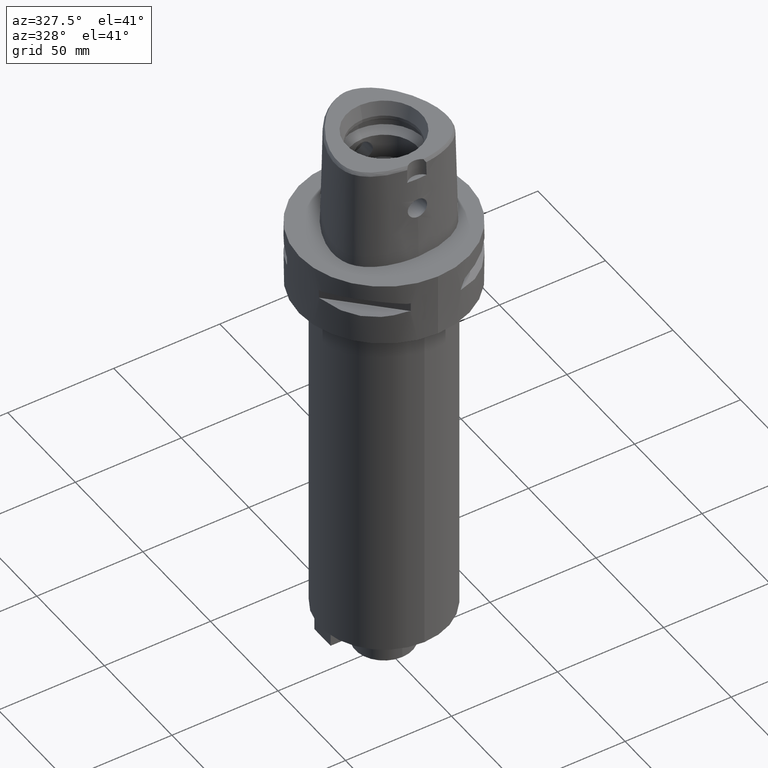
[diagram: clean part render]
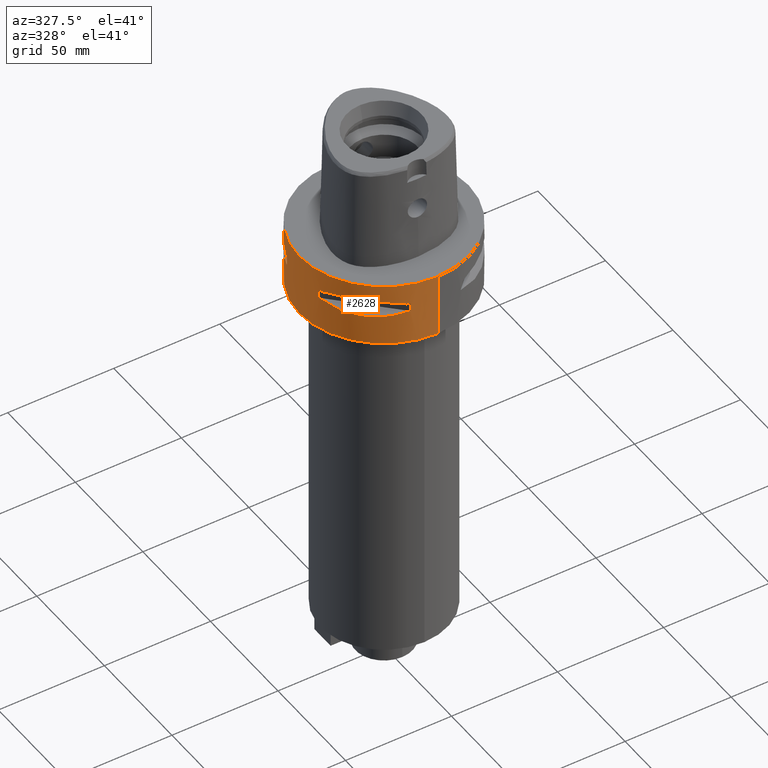
[diagram: same view with one face highlighted and labeled with its STEP entity id]
A machine part, auxiliary view. The second image highlights one B-rep face of the part: STEP entity #2628.
In plain terms, the highlighted cylindrical surface (partial cylindrical patch) has radius 40 mm, axis along (0, 0, -1).
Its self-contained STEP definition (entity closure, byte-faithful):
#267=CARTESIAN_POINT('',(0.E0,1.359357947054E-14,0.E0));
#268=DIRECTION('',(0.E0,0.E0,-1.E0));
#269=DIRECTION('',(0.E0,-1.E0,0.E0));
#270=AXIS2_PLACEMENT_3D('',#267,#268,#269);
#363=DIRECTION('',(0.E0,0.E0,-1.E0));
#364=VECTOR('',#363,3.E1);
#365=CARTESIAN_POINT('',(0.E0,-4.E1,0.E0));
#366=LINE('',#365,#364);
#370=DIRECTION('',(0.E0,0.E0,-1.E0));
#371=VECTOR('',#370,4.1E0);
#372=CARTESIAN_POINT('',(-1.176033600281E1,3.823211342708E1,-9.95E0));
#373=LINE('',#372,#371);
#377=CARTESIAN_POINT('',(-1.323717311056E1,3.774622163927E1,-1.405E1));
#378=CARTESIAN_POINT('',(-1.626143876435E1,3.668564587161E1,-1.485167303901E1));
#379=CARTESIAN_POINT('',(-2.171906657626E1,3.397359084062E1,-1.597254843317E1));
#380=CARTESIAN_POINT('',(-2.850324251697E1,2.850324251697E1,-1.650891631180E1));
#381=CARTESIAN_POINT('',(-3.397359084062E1,2.171906657626E1,-1.597254843317E1));
#382=CARTESIAN_POINT('',(-3.668564587161E1,1.626143876435E1,-1.485167303901E1));
#383=CARTESIAN_POINT('',(-3.774622163927E1,1.323717311056E1,-1.405E1));
#388=DIRECTION('',(0.E0,0.E0,1.E0));
#389=VECTOR('',#388,4.1E0);
#390=CARTESIAN_POINT('',(-3.823211342708E1,1.176033600281E1,-1.405E1));
#391=LINE('',#390,#389);
#395=DIRECTION('',(0.E0,0.E0,-1.E0));
#396=VECTOR('',#395,4.1E0);
#397=CARTESIAN_POINT('',(-3.823211342708E1,-1.176033600281E1,-9.95E0));
#398=LINE('',#397,#396);
#402=CARTESIAN_POINT('',(-3.774622163927E1,-1.323717311056E1,-1.405E1));
#403=CARTESIAN_POINT('',(-3.668564587161E1,-1.626143876435E1,
-1.485167303901E1));
#404=CARTESIAN_POINT('',(-3.397359084062E1,-2.171906657626E1,
-1.597254843317E1));
#405=CARTESIAN_POINT('',(-2.850324251697E1,-2.850324251697E1,
-1.650891631180E1));
#406=CARTESIAN_POINT('',(-2.171906657626E1,-3.397359084062E1,
-1.597254843317E1));
#407=CARTESIAN_POINT('',(-1.626143876435E1,-3.668564587161E1,
-1.485167303901E1));
#408=CARTESIAN_POINT('',(-1.323717311056E1,-3.774622163927E1,-1.405E1));
#413=DIRECTION('',(0.E0,0.E0,1.E0));
#414=VECTOR('',#413,4.1E0);
#415=CARTESIAN_POINT('',(-1.176033600281E1,-3.823211342708E1,-1.405E1));
#416=LINE('',#415,#414);
#420=DIRECTION('',(0.E0,0.E0,-1.E0));
#421=VECTOR('',#420,3.E1);
#422=CARTESIAN_POINT('',(0.E0,4.E1,0.E0));
#423=LINE('',#422,#421);
#485=CARTESIAN_POINT('',(0.E0,1.359357947054E-14,-3.E1));
#486=DIRECTION('',(0.E0,0.E0,1.E0));
#487=DIRECTION('',(0.E0,1.E0,0.E0));
#488=AXIS2_PLACEMENT_3D('',#485,#486,#487);
#1484=CARTESIAN_POINT('',(-1.323717311056E1,3.774622163927E1,
-9.950000000002E0));
#1485=CARTESIAN_POINT('',(-1.626143876435E1,3.668564587161E1,
-9.148326960991E0));
#1486=CARTESIAN_POINT('',(-2.171906657626E1,3.397359084062E1,
-8.027451566833E0));
#1487=CARTESIAN_POINT('',(-2.850324251697E1,2.850324251697E1,
-7.491083688204E0));
#1488=CARTESIAN_POINT('',(-3.397359084062E1,2.171906657626E1,
-8.027451566833E0));
#1489=CARTESIAN_POINT('',(-3.668564587161E1,1.626143876435E1,
-9.148326960991E0));
#1490=CARTESIAN_POINT('',(-3.774622163927E1,1.323717311056E1,
-9.950000000002E0));
#1495=CARTESIAN_POINT('',(0.E0,1.359357947054E-14,-9.95E0));
#1496=DIRECTION('',(0.E0,0.E0,1.E0));
#1497=DIRECTION('',(-9.436555409818E-1,3.309293277639E-1,0.E0));
#1498=AXIS2_PLACEMENT_3D('',#1495,#1496,#1497);
#1503=CARTESIAN_POINT('',(0.E0,1.359357947054E-14,-9.95E0));
#1504=DIRECTION('',(0.E0,0.E0,1.E0));
#1505=DIRECTION('',(-2.940084000703E-1,9.558028356770E-1,0.E0));
#1506=AXIS2_PLACEMENT_3D('',#1503,#1504,#1505);
#1525=CARTESIAN_POINT('',(0.E0,1.359357947054E-14,-1.405E1));
#1526=DIRECTION('',(0.E0,0.E0,-1.E0));
#1527=DIRECTION('',(-9.558028356770E-1,2.940084000703E-1,0.E0));
#1528=AXIS2_PLACEMENT_3D('',#1525,#1526,#1527);
#1533=CARTESIAN_POINT('',(0.E0,1.359357947054E-14,-1.405E1));
#1534=DIRECTION('',(0.E0,0.E0,-1.E0));
#1535=DIRECTION('',(-3.309293277639E-1,9.436555409818E-1,0.E0));
#1536=AXIS2_PLACEMENT_3D('',#1533,#1534,#1535);
#1555=CARTESIAN_POINT('',(-3.774622163927E1,-1.323717311056E1,
-9.950000000002E0));
#1556=CARTESIAN_POINT('',(-3.668564587161E1,-1.626143876435E1,
-9.148326960991E0));
#1557=CARTESIAN_POINT('',(-3.397359084062E1,-2.171906657626E1,
-8.027451566833E0));
#1558=CARTESIAN_POINT('',(-2.850324251697E1,-2.850324251697E1,
-7.491083688204E0));
#1559=CARTESIAN_POINT('',(-2.171906657626E1,-3.397359084062E1,
-8.027451566833E0));
#1560=CARTESIAN_POINT('',(-1.626143876435E1,-3.668564587161E1,
-9.148326960991E0));
#1561=CARTESIAN_POINT('',(-1.323717311056E1,-3.774622163927E1,
-9.950000000002E0));
#1566=CARTESIAN_POINT('',(0.E0,1.359357947054E-14,-9.95E0));
#1567=DIRECTION('',(0.E0,0.E0,1.E0));
#1568=DIRECTION('',(-3.309293277639E-1,-9.436555409818E-1,0.E0));
#1569=AXIS2_PLACEMENT_3D('',#1566,#1567,#1568);
#1574=CARTESIAN_POINT('',(0.E0,1.359357947054E-14,-9.95E0));
#1575=DIRECTION('',(0.E0,0.E0,1.E0));
#1576=DIRECTION('',(-9.558028356770E-1,-2.940084000703E-1,0.E0));
#1577=AXIS2_PLACEMENT_3D('',#1574,#1575,#1576);
#1596=CARTESIAN_POINT('',(0.E0,1.359357947054E-14,-1.405E1));
#1597=DIRECTION('',(0.E0,0.E0,-1.E0));
#1598=DIRECTION('',(-2.940084000703E-1,-9.558028356770E-1,0.E0));
#1599=AXIS2_PLACEMENT_3D('',#1596,#1597,#1598);
#1604=CARTESIAN_POINT('',(0.E0,1.359357947054E-14,-1.405E1));
#1605=DIRECTION('',(0.E0,0.E0,-1.E0));
#1606=DIRECTION('',(-9.436555409818E-1,-3.309293277639E-1,0.E0));
#1607=AXIS2_PLACEMENT_3D('',#1604,#1605,#1606);
#1648=CARTESIAN_POINT('',(0.E0,-4.E1,0.E0));
#1649=CARTESIAN_POINT('',(0.E0,4.E1,0.E0));
#1650=VERTEX_POINT('',#1648);
#1651=VERTEX_POINT('',#1649);
#1652=CARTESIAN_POINT('',(0.E0,4.E1,-3.E1));
#1653=VERTEX_POINT('',#1652);
#1654=CARTESIAN_POINT('',(0.E0,-4.E1,-3.E1));
#1655=VERTEX_POINT('',#1654);
#1656=VERTEX_POINT('',#1484);
#1657=VERTEX_POINT('',#1490);
#1658=CARTESIAN_POINT('',(-1.176033600281E1,3.823211342708E1,-9.95E0));
#1659=VERTEX_POINT('',#1658);
#1660=CARTESIAN_POINT('',(-1.176033600281E1,3.823211342708E1,-1.405E1));
#1661=VERTEX_POINT('',#1660);
#1662=CARTESIAN_POINT('',(-1.323717311056E1,3.774622163927E1,-1.405E1));
#1663=VERTEX_POINT('',#1662);
#1664=VERTEX_POINT('',#383);
#1665=CARTESIAN_POINT('',(-3.823211342708E1,1.176033600281E1,-1.405E1));
#1666=VERTEX_POINT('',#1665);
#1667=CARTESIAN_POINT('',(-3.823211342708E1,1.176033600281E1,-9.95E0));
#1668=VERTEX_POINT('',#1667);
#1669=VERTEX_POINT('',#1555);
#1670=VERTEX_POINT('',#1561);
#1671=CARTESIAN_POINT('',(-3.823211342708E1,-1.176033600281E1,-9.95E0));
#1672=VERTEX_POINT('',#1671);
#1673=CARTESIAN_POINT('',(-3.823211342708E1,-1.176033600281E1,-1.405E1));
#1674=VERTEX_POINT('',#1673);
#1675=CARTESIAN_POINT('',(-3.774622163927E1,-1.323717311056E1,-1.405E1));
#1676=VERTEX_POINT('',#1675);
#1677=VERTEX_POINT('',#408);
#1678=CARTESIAN_POINT('',(-1.176033600281E1,-3.823211342708E1,-1.405E1));
#1679=VERTEX_POINT('',#1678);
#1680=CARTESIAN_POINT('',(-1.176033600281E1,-3.823211342708E1,-9.95E0));
#1681=VERTEX_POINT('',#1680);
#2578=CARTESIAN_POINT('',(0.E0,1.359357947054E-14,1.1E1));
#2579=DIRECTION('',(0.E0,0.E0,-1.E0));
#2580=DIRECTION('',(0.E0,-1.E0,0.E0));
#2581=AXIS2_PLACEMENT_3D('',#2578,#2579,#2580);
#2582=CYLINDRICAL_SURFACE('',#2581,4.E1);
#2584=ORIENTED_EDGE('',*,*,#2583,.F.);
#2585=ORIENTED_EDGE('',*,*,#2566,.F.);
#2587=ORIENTED_EDGE('',*,*,#2586,.T.);
#2589=ORIENTED_EDGE('',*,*,#2588,.F.);
#2590=EDGE_LOOP('',(#2584,#2585,#2587,#2589));
#2591=FACE_OUTER_BOUND('',#2590,.F.);
#2593=ORIENTED_EDGE('',*,*,#2592,.F.);
#2595=ORIENTED_EDGE('',*,*,#2594,.F.);
#2597=ORIENTED_EDGE('',*,*,#2596,.T.);
#2599=ORIENTED_EDGE('',*,*,#2598,.F.);
#2601=ORIENTED_EDGE('',*,*,#2600,.T.);
#2603=ORIENTED_EDGE('',*,*,#2602,.F.);
#2605=ORIENTED_EDGE('',*,*,#2604,.T.);
#2607=ORIENTED_EDGE('',*,*,#2606,.F.);
#2608=EDGE_LOOP('',(#2593,#2595,#2597,#2599,#2601,#2603,#2605,#2607));
#2609=FACE_BOUND('',#2608,.F.);
#2611=ORIENTED_EDGE('',*,*,#2610,.F.);
#2613=ORIENTED_EDGE('',*,*,#2612,.F.);
#2615=ORIENTED_EDGE('',*,*,#2614,.T.);
#2617=ORIENTED_EDGE('',*,*,#2616,.F.);
#2619=ORIENTED_EDGE('',*,*,#2618,.T.);
#2621=ORIENTED_EDGE('',*,*,#2620,.F.);
#2623=ORIENTED_EDGE('',*,*,#2622,.T.);
#2625=ORIENTED_EDGE('',*,*,#2624,.F.);
#2626=EDGE_LOOP('',(#2611,#2613,#2615,#2617,#2619,#2621,#2623,#2625));
#2627=FACE_BOUND('',#2626,.F.);
#271=CIRCLE('',#270,4.E1);
#384=B_SPLINE_CURVE_WITH_KNOTS('',3,(#377,#378,#379,#380,#381,#382,#383),
.UNSPECIFIED.,.F.,.F.,(4,1,1,1,4),(0.E0,2.5E-1,5.E-1,7.5E-1,1.E0),
.UNSPECIFIED.);
#409=B_SPLINE_CURVE_WITH_KNOTS('',3,(#402,#403,#404,#405,#406,#407,#408),
.UNSPECIFIED.,.F.,.F.,(4,1,1,1,4),(0.E0,2.5E-1,5.E-1,7.5E-1,1.E0),
.UNSPECIFIED.);
#489=CIRCLE('',#488,4.E1);
#1491=B_SPLINE_CURVE_WITH_KNOTS('',3,(#1484,#1485,#1486,#1487,#1488,#1489,
#1490),.UNSPECIFIED.,.F.,.F.,(4,1,1,1,4),(0.E0,2.5E-1,5.E-1,7.5E-1,1.E0),
.UNSPECIFIED.);
#1499=CIRCLE('',#1498,4.E1);
#1507=CIRCLE('',#1506,4.E1);
#1529=CIRCLE('',#1528,4.E1);
#1537=CIRCLE('',#1536,4.E1);
#1562=B_SPLINE_CURVE_WITH_KNOTS('',3,(#1555,#1556,#1557,#1558,#1559,#1560,
#1561),.UNSPECIFIED.,.F.,.F.,(4,1,1,1,4),(0.E0,2.5E-1,5.E-1,7.5E-1,1.E0),
.UNSPECIFIED.);
#1570=CIRCLE('',#1569,4.E1);
#1578=CIRCLE('',#1577,4.E1);
#1600=CIRCLE('',#1599,4.E1);
#1608=CIRCLE('',#1607,4.E1);
#2566=EDGE_CURVE('',#1650,#1651,#271,.T.);
#2583=EDGE_CURVE('',#1651,#1653,#423,.T.);
#2586=EDGE_CURVE('',#1650,#1655,#366,.T.);
#2588=EDGE_CURVE('',#1653,#1655,#489,.T.);
#2592=EDGE_CURVE('',#1656,#1657,#1491,.T.);
#2594=EDGE_CURVE('',#1659,#1656,#1507,.T.);
#2596=EDGE_CURVE('',#1659,#1661,#373,.T.);
#2598=EDGE_CURVE('',#1663,#1661,#1537,.T.);
#2600=EDGE_CURVE('',#1663,#1664,#384,.T.);
#2602=EDGE_CURVE('',#1666,#1664,#1529,.T.);
#2604=EDGE_CURVE('',#1666,#1668,#391,.T.);
#2606=EDGE_CURVE('',#1657,#1668,#1499,.T.);
#2610=EDGE_CURVE('',#1669,#1670,#1562,.T.);
#2612=EDGE_CURVE('',#1672,#1669,#1578,.T.);
#2614=EDGE_CURVE('',#1672,#1674,#398,.T.);
#2616=EDGE_CURVE('',#1676,#1674,#1608,.T.);
#2618=EDGE_CURVE('',#1676,#1677,#409,.T.);
#2620=EDGE_CURVE('',#1679,#1677,#1600,.T.);
#2622=EDGE_CURVE('',#1679,#1681,#416,.T.);
#2624=EDGE_CURVE('',#1670,#1681,#1570,.T.);
#2628=ADVANCED_FACE('',(#2591,#2609,#2627),#2582,.T.);